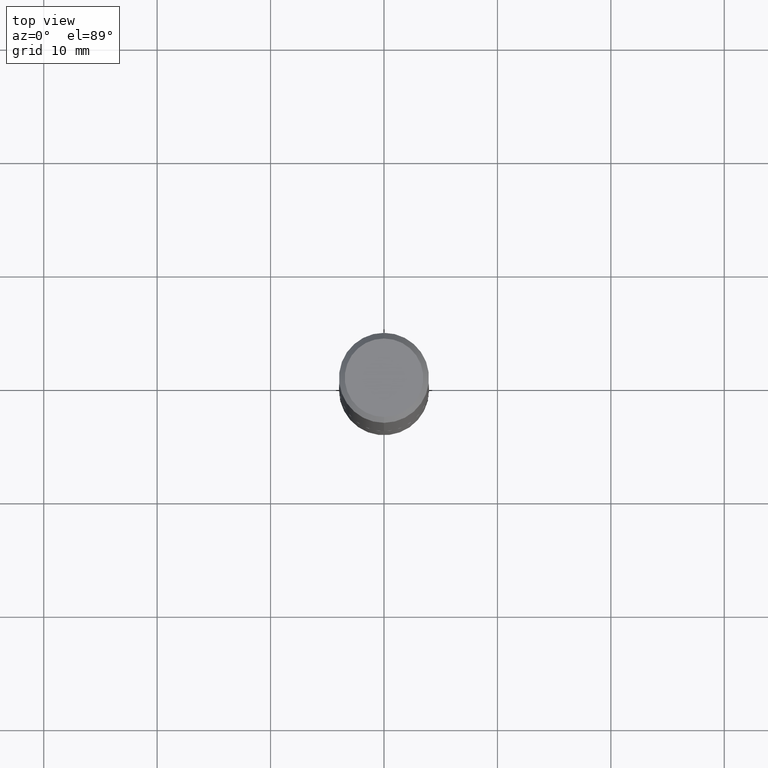
[diagram: clean part render]
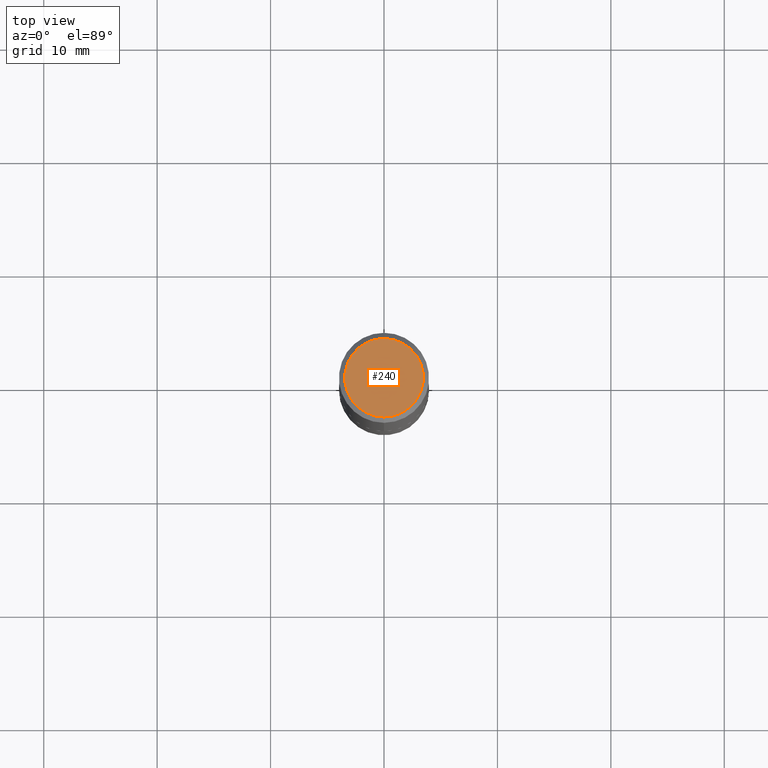
[diagram: same view with one face highlighted and labeled with its STEP entity id]
A machine part, top view. The second image highlights one B-rep face of the part: STEP entity #240.
In plain terms, the highlighted planar face has unit normal (0, -0, -1).
Its self-contained STEP definition (entity closure, byte-faithful):
#2 = CIRCLE ( 'NONE', #336, 0.1362500000000000933 ) ;
#18 = ORIENTED_EDGE ( 'NONE', *, *, #132, .T. ) ;
#31 = AXIS2_PLACEMENT_3D ( 'NONE', #160, #321, #267 ) ;
#35 = CARTESIAN_POINT ( 'NONE',  ( -1.003347832174086278E-15, -0.1362500000000000933, 4.246574766730091504E-16 ) ) ;
#52 = FACE_OUTER_BOUND ( 'NONE', #80, .T. ) ;
#73 = CARTESIAN_POINT ( 'NONE',  ( 1.250383974604437494E-45, -1.785836401521438243E-31, -5.113950281278734949E-17 ) ) ;
#80 = EDGE_LOOP ( 'NONE', ( #224, #18 ) ) ;
#132 = EDGE_CURVE ( 'NONE', #391, #374, #2, .T. ) ;
#137 = CARTESIAN_POINT ( 'NONE',  ( 1.250383974604437494E-45, -1.785836401521438243E-31, -5.113950281278734949E-17 ) ) ;
#160 = CARTESIAN_POINT ( 'NONE',  ( 9.514286648347543521E-16, 0.1362500000000000933, -5.013667308921901438E-16 ) ) ;
#184 = DIRECTION ( 'NONE',  ( -6.982962677686265922E-15, -1.000000000000000000, 3.492087922831531704E-15 ) ) ;
#224 = ORIENTED_EDGE ( 'NONE', *, *, #417, .T. ) ;
#231 = PLANE ( 'NONE',  #31 ) ;
#240 = ADVANCED_FACE ( 'NONE', ( #52 ), #231, .F. ) ;
#250 = DIRECTION ( 'NONE',  ( -6.982962677686265922E-15, -1.000000000000000000, 3.492087922831531704E-15 ) ) ;
#266 = DIRECTION ( 'NONE',  ( -2.445045230849958565E-29, 3.492087922831531704E-15, 1.000000000000000000 ) ) ;
#267 = DIRECTION ( 'NONE',  ( 6.982962677686265922E-15, 1.000000000000000000, -3.492087922831532098E-15 ) ) ;
#278 = AXIS2_PLACEMENT_3D ( 'NONE', #137, #360, #184 ) ;
#302 = CIRCLE ( 'NONE', #278, 0.1362500000000000933 ) ;
#321 = DIRECTION ( 'NONE',  ( 2.445045230849957724E-29, -3.492087922831532098E-15, -1.000000000000000000 ) ) ;
#333 = CARTESIAN_POINT ( 'NONE',  ( 1.021258291611616861E-15, 0.1362500000000000933, -5.269364822985837754E-16 ) ) ;
#336 = AXIS2_PLACEMENT_3D ( 'NONE', #73, #266, #250 ) ;
#360 = DIRECTION ( 'NONE',  ( -2.445045230849958565E-29, 3.492087922831531704E-15, 1.000000000000000000 ) ) ;
#374 = VERTEX_POINT ( 'NONE', #333 ) ;
#391 = VERTEX_POINT ( 'NONE', #35 ) ;
#417 = EDGE_CURVE ( 'NONE', #374, #391, #302, .T. ) ;